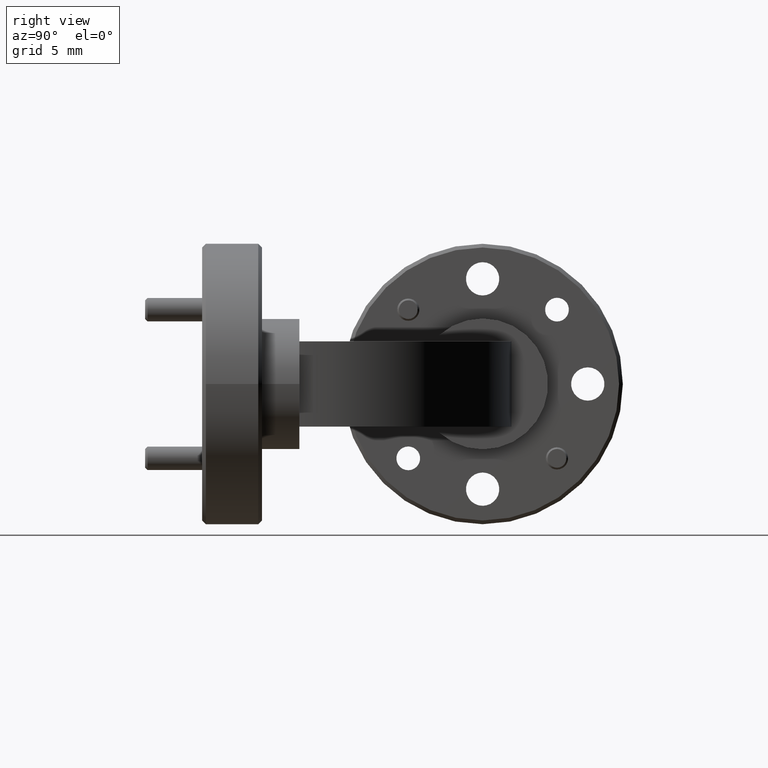
[diagram: clean part render]
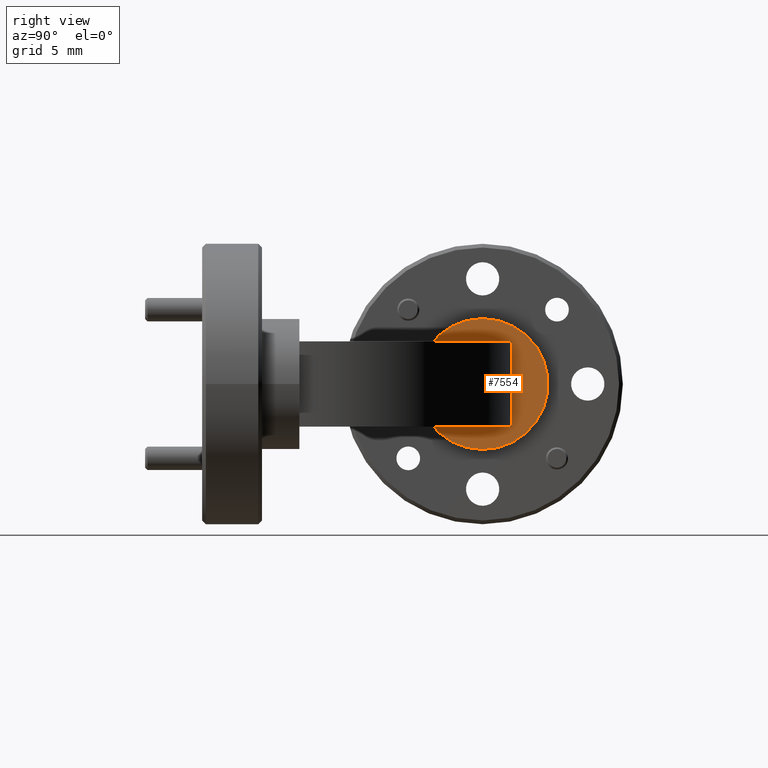
[diagram: same view with one face highlighted and labeled with its STEP entity id]
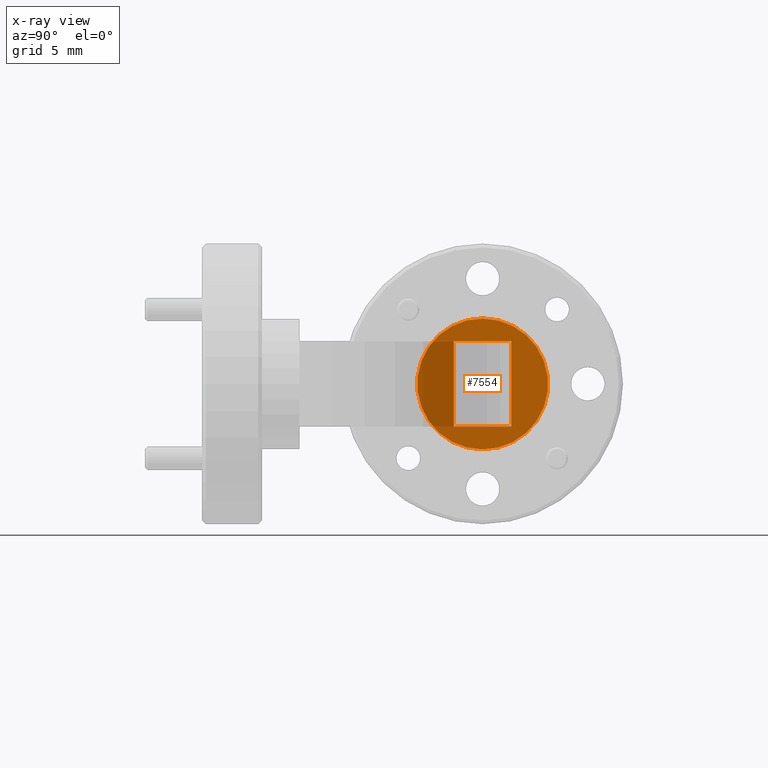
[diagram: x-ray of the same camera — body ghosted, the highlighted face saturated]
A machine part, right view. The second image highlights one B-rep face of the part: STEP entity #7554.
The next image is the same camera in x-ray: the body ghosted, the highlighted face saturated — about 32% of this face is hidden behind the body in this view.
In plain terms, the highlighted planar face has unit normal (1, 0, 0).
Its self-contained STEP definition (entity closure, byte-faithful):
#166 = CIRCLE ( 'NONE', #6598, 0.1749999999999999889 ) ;
#297 = LINE ( 'NONE', #3946, #2408 ) ;
#405 = EDGE_LOOP ( 'NONE', ( #2986, #6400 ) ) ;
#651 = LINE ( 'NONE', #7776, #3477 ) ;
#1235 = AXIS2_PLACEMENT_3D ( 'NONE', #5371, #7671, #4058 ) ;
#1416 = VERTEX_POINT ( 'NONE', #5132 ) ;
#1439 = AXIS2_PLACEMENT_3D ( 'NONE', #7530, #2114, #7413 ) ;
#1482 = PLANE ( 'NONE',  #1235 ) ;
#1524 = VERTEX_POINT ( 'NONE', #7677 ) ;
#1598 = EDGE_CURVE ( 'NONE', #6462, #1524, #1731, .T. ) ;
#1603 = CARTESIAN_POINT ( 'NONE',  ( -1.839202687138052461, 0.5399372755288026626, 0.5190634001413547693 ) ) ;
#1731 = LINE ( 'NONE', #1603, #4139 ) ;
#1903 = EDGE_LOOP ( 'NONE', ( #4975, #2444, #2922, #7535 ) ) ;
#1988 = DIRECTION ( 'NONE',  ( 1.000000000000000000, 0.000000000000000000, 0.000000000000000000 ) ) ;
#2091 = FACE_OUTER_BOUND ( 'NONE', #405, .T. ) ;
#2114 = DIRECTION ( 'NONE',  ( 1.000000000000000000, 0.000000000000000000, 0.000000000000000000 ) ) ;
#2270 = CARTESIAN_POINT ( 'NONE',  ( -1.839202687138052461, 0.6939688337378494554, 0.6330634001413546486 ) ) ;
#2408 = VECTOR ( 'NONE', #6339, 39.37007874015748143 ) ;
#2422 = EDGE_CURVE ( 'NONE', #6462, #3674, #651, .T. ) ;
#2444 = ORIENTED_EDGE ( 'NONE', *, *, #5191, .T. ) ;
#2871 = CIRCLE ( 'NONE', #1439, 0.1749999999999999889 ) ;
#2922 = ORIENTED_EDGE ( 'NONE', *, *, #1598, .F. ) ;
#2986 = ORIENTED_EDGE ( 'NONE', *, *, #3870, .T. ) ;
#3019 = DIRECTION ( 'NONE',  ( 0.000000000000000000, 1.000000000000000000, 0.000000000000000000 ) ) ;
#3477 = VECTOR ( 'NONE', #3019, 39.37007874015748143 ) ;
#3565 = CARTESIAN_POINT ( 'NONE',  ( -1.839202687138052461, 0.5399372755288026626, 0.6330634001413546486 ) ) ;
#3630 = DIRECTION ( 'NONE',  ( 0.000000000000000000, 0.000000000000000000, 1.000000000000000000 ) ) ;
#3674 = VERTEX_POINT ( 'NONE', #2270 ) ;
#3870 = EDGE_CURVE ( 'NONE', #5749, #3968, #2871, .T. ) ;
#3946 = CARTESIAN_POINT ( 'NONE',  ( -1.839202687138052461, 0.5400554953585049445, 0.4050634001413547236 ) ) ;
#3968 = VERTEX_POINT ( 'NONE', #7644 ) ;
#4058 = DIRECTION ( 'NONE',  ( 0.000000000000000000, 0.000000000000000000, -1.000000000000000000 ) ) ;
#4139 = VECTOR ( 'NONE', #5296, 39.37007874015748143 ) ;
#4416 = DIRECTION ( 'NONE',  ( 0.000000000000000000, 0.000000000000000000, -1.000000000000000000 ) ) ;
#4545 = EDGE_CURVE ( 'NONE', #3968, #5749, #166, .T. ) ;
#4825 = CARTESIAN_POINT ( 'NONE',  ( -1.839202687138052461, 0.6170554953585049018, 0.6940634001413545917 ) ) ;
#4896 = CARTESIAN_POINT ( 'NONE',  ( -1.839202687138052461, 0.6939688337378494554, 0.5190634001413547693 ) ) ;
#4975 = ORIENTED_EDGE ( 'NONE', *, *, #5727, .F. ) ;
#5132 = CARTESIAN_POINT ( 'NONE',  ( -1.839202687138052461, 0.6939688337378494554, 0.4050634001413547236 ) ) ;
#5191 = EDGE_CURVE ( 'NONE', #1416, #1524, #297, .T. ) ;
#5296 = DIRECTION ( 'NONE',  ( -0.000000000000000000, -0.000000000000000000, -1.000000000000000000 ) ) ;
#5371 = CARTESIAN_POINT ( 'NONE',  ( -1.839202687138052461, 0.6170554953585049018, 0.5190634001413547693 ) ) ;
#5463 = LINE ( 'NONE', #4896, #6001 ) ;
#5727 = EDGE_CURVE ( 'NONE', #1416, #3674, #5463, .T. ) ;
#5749 = VERTEX_POINT ( 'NONE', #4825 ) ;
#6001 = VECTOR ( 'NONE', #3630, 39.37007874015748143 ) ;
#6339 = DIRECTION ( 'NONE',  ( 0.000000000000000000, -1.000000000000000000, 0.000000000000000000 ) ) ;
#6400 = ORIENTED_EDGE ( 'NONE', *, *, #4545, .T. ) ;
#6462 = VERTEX_POINT ( 'NONE', #3565 ) ;
#6598 = AXIS2_PLACEMENT_3D ( 'NONE', #7388, #1988, #4416 ) ;
#6902 = FACE_BOUND ( 'NONE', #1903, .T. ) ;
#7388 = CARTESIAN_POINT ( 'NONE',  ( -1.839202687138052461, 0.6170554953585049018, 0.5190634001413547693 ) ) ;
#7413 = DIRECTION ( 'NONE',  ( 0.000000000000000000, 0.000000000000000000, -1.000000000000000000 ) ) ;
#7530 = CARTESIAN_POINT ( 'NONE',  ( -1.839202687138052461, 0.6170554953585049018, 0.5190634001413547693 ) ) ;
#7535 = ORIENTED_EDGE ( 'NONE', *, *, #2422, .T. ) ;
#7554 = ADVANCED_FACE ( 'NONE', ( #2091, #6902 ), #1482, .T. ) ;
#7644 = CARTESIAN_POINT ( 'NONE',  ( -1.839202687138052461, 0.6170554953585049018, 0.3440634001413547249 ) ) ;
#7671 = DIRECTION ( 'NONE',  ( 1.000000000000000000, 0.000000000000000000, 0.000000000000000000 ) ) ;
#7677 = CARTESIAN_POINT ( 'NONE',  ( -1.839202687138052461, 0.5399372755288026626, 0.4050634001413547236 ) ) ;
#7776 = CARTESIAN_POINT ( 'NONE',  ( -1.839202687138052461, 0.5400554953585050555, 0.6330634001413546486 ) ) ;